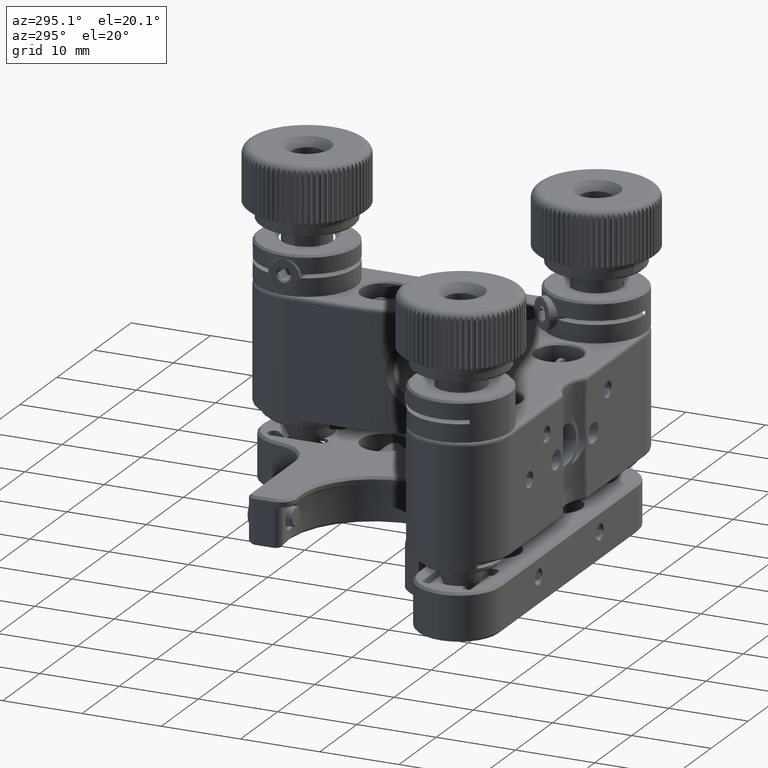
[diagram: clean part render]
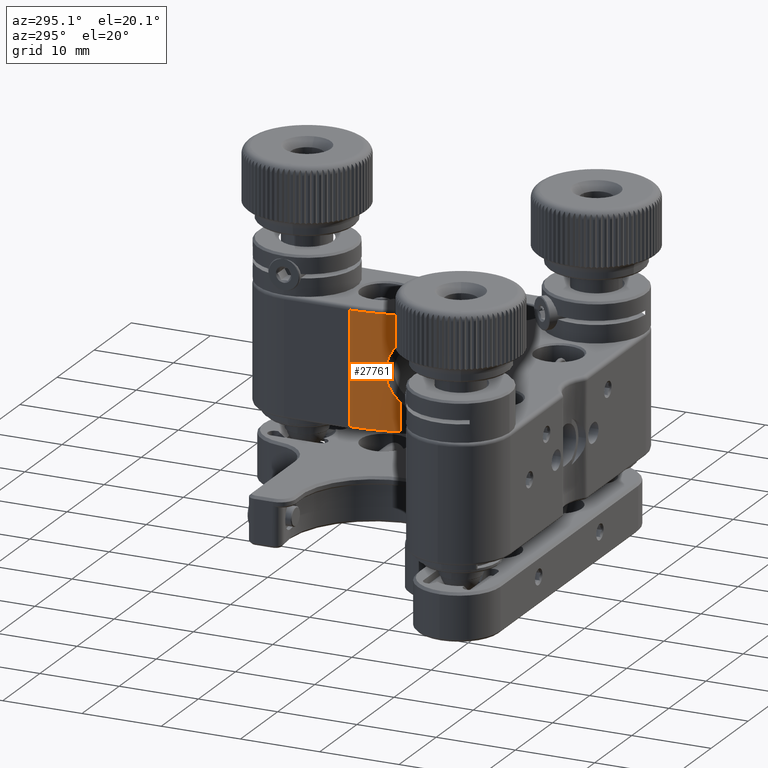
[diagram: same view with one face highlighted and labeled with its STEP entity id]
A machine part, auxiliary view. The second image highlights one B-rep face of the part: STEP entity #27761.
In plain terms, the highlighted cylindrical surface (partial cylindrical patch) has radius 20 mm, axis along (-0, -0, 1).
Its self-contained STEP definition (entity closure, byte-faithful):
#2945 = LINE ( 'NONE', #4036, #38724 ) ;
#3251 = VERTEX_POINT ( 'NONE', #55202 ) ;
#3455 = CARTESIAN_POINT ( 'NONE',  ( 12.47478459017899688, 5.580104298623919767, -0.6723073885144001949 ) ) ;
#3720 = VECTOR ( 'NONE', #22869, 1000.000000000000000 ) ;
#3750 = CARTESIAN_POINT ( 'NONE',  ( 12.53253488083033673, 5.327265791561824670, 1.658352964616862213 ) ) ;
#4036 = CARTESIAN_POINT ( 'NONE',  ( 12.00000000000000533, 9.912113800799499330, -7.500000000000000000 ) ) ;
#5098 = ORIENTED_EDGE ( 'NONE', *, *, #21879, .F. ) ;
#7022 = ORIENTED_EDGE ( 'NONE', *, *, #29445, .T. ) ;
#7919 = CARTESIAN_POINT ( 'NONE',  ( 12.48089331032936933, 5.552541719231292916, -0.8419694411803472223 ) ) ;
#8371 = DIRECTION ( 'NONE',  ( 1.000000000000000000, 0.000000000000000000, 0.000000000000000000 ) ) ;
#9223 = EDGE_CURVE ( 'NONE', #3251, #22164, #18142, .T. ) ;
#10823 = CARTESIAN_POINT ( 'NONE',  ( 12.54705062304345553, 5.265816012329343820, 1.814119420445841735 ) ) ;
#12114 = CARTESIAN_POINT ( 'NONE',  ( 12.89552238805970141, 3.994433919725174142, -3.587467383401824694 ) ) ;
#13119 = DIRECTION ( 'NONE',  ( 1.000000000000000000, 4.423544863740857302E-15, 0.000000000000000000 ) ) ;
#13954 = CARTESIAN_POINT ( 'NONE',  ( 12.89552238805970141, 3.994433919725174142, -7.500000000000000000 ) ) ;
#14733 = CARTESIAN_POINT ( 'NONE',  ( 12.85634049112212196, 4.120927695644255095, -3.475092586170489106 ) ) ;
#16044 = DIRECTION ( 'NONE',  ( 0.000000000000000000, -0.000000000000000000, 1.000000000000000000 ) ) ;
#17018 = AXIS2_PLACEMENT_3D ( 'NONE', #44512, #52911, #21891 ) ;
#17308 = DIRECTION ( 'NONE',  ( 0.000000000000000000, -0.000000000000000000, -1.000000000000000000 ) ) ;
#17675 = B_SPLINE_CURVE_WITH_KNOTS ( 'NONE', 3,
 ( #12114, #14733, #28101, #45166, #19191, #46195, #46479, #23924, #25238, #41718, #44896, #7919, #3455, #20483, #36221, #54589, #24951, #41998, #53275, #49094, #42275, #3750, #10823, #37816, #50672, #53016, #27837, #46760 ),
 .UNSPECIFIED., .F., .F.,
 ( 4, 2, 2, 2, 2, 2, 2, 2, 2, 2, 2, 2, 2, 4 ),
 ( 0.000000000000000000, 0.06249999999999994449, 0.1249999999999998890, 0.1874999999999998335, 0.2499999999999997780, 0.3749999999999997224, 0.4374999999999997224, 0.4999999999999997780, 0.5624999999999997780, 0.6249999999999998890, 0.6874999999999997780, 0.7499999999999997780, 0.8749999999999998890, 1.000000000000000000 ),
 .UNSPECIFIED. ) ;
#17983 = CYLINDRICAL_SURFACE ( 'NONE', #17018, 20.00000000000000355 ) ;
#18142 = LINE ( 'NONE', #13954, #3720 ) ;
#18804 = CIRCLE ( 'NONE', #37535, 20.00000000000000355 ) ;
#18973 = CARTESIAN_POINT ( 'NONE',  ( 12.89552238805970141, 3.994433919725174142, 3.587467383401824694 ) ) ;
#19191 = CARTESIAN_POINT ( 'NONE',  ( 12.72460962127421169, 4.576355621503143567, -2.978895858820249654 ) ) ;
#20483 = CARTESIAN_POINT ( 'NONE',  ( 12.46679361785843021, 5.616279590833407553, -0.3369266445974143931 ) ) ;
#21693 = DIRECTION ( 'NONE',  ( 0.000000000000000000, 0.000000000000000000, -1.000000000000000000 ) ) ;
#21879 = EDGE_CURVE ( 'NONE', #32196, #30512, #25883, .T. ) ;
#21891 = DIRECTION ( 'NONE',  ( 1.000000000000000000, 0.000000000000000000, 0.000000000000000000 ) ) ;
#22131 = CARTESIAN_POINT ( 'NONE',  ( 12.00000000000000533, 9.912113800799499330, -7.200000000000000178 ) ) ;
#22137 = CARTESIAN_POINT ( 'NONE',  ( 12.89552238805970141, 3.994433919725174142, 6.999999999999999112 ) ) ;
#22164 = VERTEX_POINT ( 'NONE', #49609 ) ;
#22869 = DIRECTION ( 'NONE',  ( 0.000000000000000000, 0.000000000000000000, -1.000000000000000000 ) ) ;
#23924 = CARTESIAN_POINT ( 'NONE',  ( 12.60083681022298840, 5.045852521347740094, -2.273393021191421504 ) ) ;
#24951 = CARTESIAN_POINT ( 'NONE',  ( 12.46677824783771094, 5.616348500030370339, 0.3366961146320663345 ) ) ;
#25135 = CARTESIAN_POINT ( 'NONE',  ( 32.00000000000000000, 9.912113800799506436, 6.999999999999999112 ) ) ;
#25238 = CARTESIAN_POINT ( 'NONE',  ( 12.58116463143629282, 5.125250726312665428, -2.121491585801764224 ) ) ;
#25883 = LINE ( 'NONE', #38477, #53252 ) ;
#26425 = ORIENTED_EDGE ( 'NONE', *, *, #51274, .T. ) ;
#26916 = FACE_OUTER_BOUND ( 'NONE', #44584, .T. ) ;
#27761 = ADVANCED_FACE ( 'NONE', ( #26916 ), #17983, .T. ) ;
#27837 = CARTESIAN_POINT ( 'NONE',  ( 12.81717578569427296, 4.247365970958428605, 3.362767020989645861 ) ) ;
#28101 = CARTESIAN_POINT ( 'NONE',  ( 12.82027876977181968, 4.241808937826213821, -3.356152169208872493 ) ) ;
#29445 = EDGE_CURVE ( 'NONE', #32196, #54403, #18804, .T. ) ;
#30512 = VERTEX_POINT ( 'NONE', #18973 ) ;
#32196 = VERTEX_POINT ( 'NONE', #22137 ) ;
#35952 = CIRCLE ( 'NONE', #49366, 20.00000000000000355 ) ;
#36221 = CARTESIAN_POINT ( 'NONE',  ( 12.46481467384272968, 5.625327793463732462, -0.1682553247577835420 ) ) ;
#37535 = AXIS2_PLACEMENT_3D ( 'NONE', #25135, #17308, #13119 ) ;
#37816 = CARTESIAN_POINT ( 'NONE',  ( 12.59867289651233868, 5.053122441496375572, 2.279028504437276226 ) ) ;
#38245 = DIRECTION ( 'NONE',  ( -0.000000000000000000, 0.000000000000000000, 1.000000000000000000 ) ) ;
#38294 = EDGE_CURVE ( 'NONE', #54499, #54403, #2945, .T. ) ;
#38370 = CARTESIAN_POINT ( 'NONE',  ( 12.00000000000000533, 9.912113800799499330, 6.999999999999999112 ) ) ;
#38477 = CARTESIAN_POINT ( 'NONE',  ( 12.89552238805970141, 3.994433919725174142, -7.500000000000000000 ) ) ;
#38724 = VECTOR ( 'NONE', #16044, 1000.000000000000000 ) ;
#39202 = ORIENTED_EDGE ( 'NONE', *, *, #9223, .F. ) ;
#39360 = CARTESIAN_POINT ( 'NONE',  ( 32.00000000000000000, 9.912113800799506436, -7.200000000000000178 ) ) ;
#41718 = CARTESIAN_POINT ( 'NONE',  ( 12.53002332083234549, 5.335990029119670019, -1.660486019645177169 ) ) ;
#41998 = CARTESIAN_POINT ( 'NONE',  ( 12.47486685841684917, 5.579732545428577772, 0.6753421902211041994 ) ) ;
#42275 = CARTESIAN_POINT ( 'NONE',  ( 12.50759480874417306, 5.434483926211693294, 1.337936035519399658 ) ) ;
#42706 = EDGE_CURVE ( 'NONE', #3251, #30512, #17675, .T. ) ;
#44512 = CARTESIAN_POINT ( 'NONE',  ( 32.00000000000000000, 9.912113800799506436, -7.500000000000000000 ) ) ;
#44584 = EDGE_LOOP ( 'NONE', ( #39202, #51589, #5098, #7022, #50129, #26425 ) ) ;
#44896 = CARTESIAN_POINT ( 'NONE',  ( 12.50551905289534638, 5.443244660680367275, -1.340757522146960756 ) ) ;
#45166 = CARTESIAN_POINT ( 'NONE',  ( 12.75438534377038913, 4.469652940835121768, -3.107792121776419059 ) ) ;
#46195 = CARTESIAN_POINT ( 'NONE',  ( 12.66973482963090269, 4.778709662859643714, -2.706814515041809255 ) ) ;
#46479 = CARTESIAN_POINT ( 'NONE',  ( 12.64522515834588923, 4.872200891595197092, -2.566468054785340680 ) ) ;
#46760 = CARTESIAN_POINT ( 'NONE',  ( 12.89552238805970141, 3.994433919725174142, 3.587467383401824694 ) ) ;
#49094 = CARTESIAN_POINT ( 'NONE',  ( 12.49733991294704438, 5.479549224963598419, 1.174886555793052345 ) ) ;
#49366 = AXIS2_PLACEMENT_3D ( 'NONE', #39360, #38245, #8371 ) ;
#49609 = CARTESIAN_POINT ( 'NONE',  ( 12.89552238805970141, 3.994433919725174142, -7.200000000000000178 ) ) ;
#50129 = ORIENTED_EDGE ( 'NONE', *, *, #38294, .F. ) ;
#50672 = CARTESIAN_POINT ( 'NONE',  ( 12.64282548456517041, 4.877919503240332411, 2.573501327744956324 ) ) ;
#51274 = EDGE_CURVE ( 'NONE', #54499, #22164, #35952, .T. ) ;
#51589 = ORIENTED_EDGE ( 'NONE', *, *, #42706, .T. ) ;
#52911 = DIRECTION ( 'NONE',  ( -0.000000000000000000, -0.000000000000000000, 1.000000000000000000 ) ) ;
#53016 = CARTESIAN_POINT ( 'NONE',  ( 12.75178210154366631, 4.476175502757286040, 3.113513458098060571 ) ) ;
#53252 = VECTOR ( 'NONE', #21693, 1000.000000000000000 ) ;
#53275 = CARTESIAN_POINT ( 'NONE',  ( 12.48101304473658679, 5.552007445406260899, 0.8445978299278763535 ) ) ;
#54403 = VERTEX_POINT ( 'NONE', #38370 ) ;
#54499 = VERTEX_POINT ( 'NONE', #22131 ) ;
#54589 = CARTESIAN_POINT ( 'NONE',  ( 12.46481447721244074, 5.625328689521875702, 0.1692919580935381418 ) ) ;
#55202 = CARTESIAN_POINT ( 'NONE',  ( 12.89552238805970141, 3.994433919725174142, -3.587467383401824694 ) ) ;